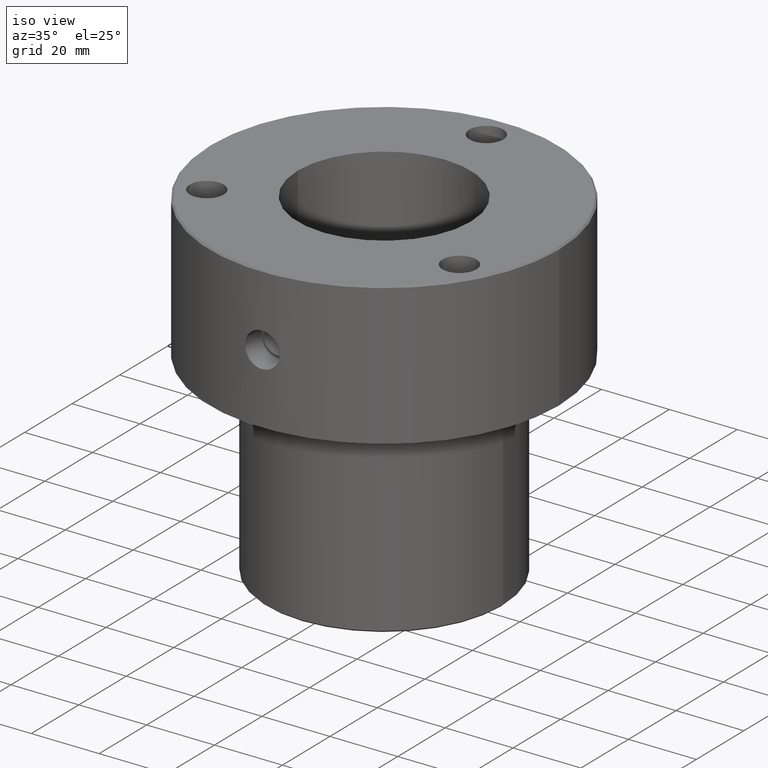
[diagram: clean part render]
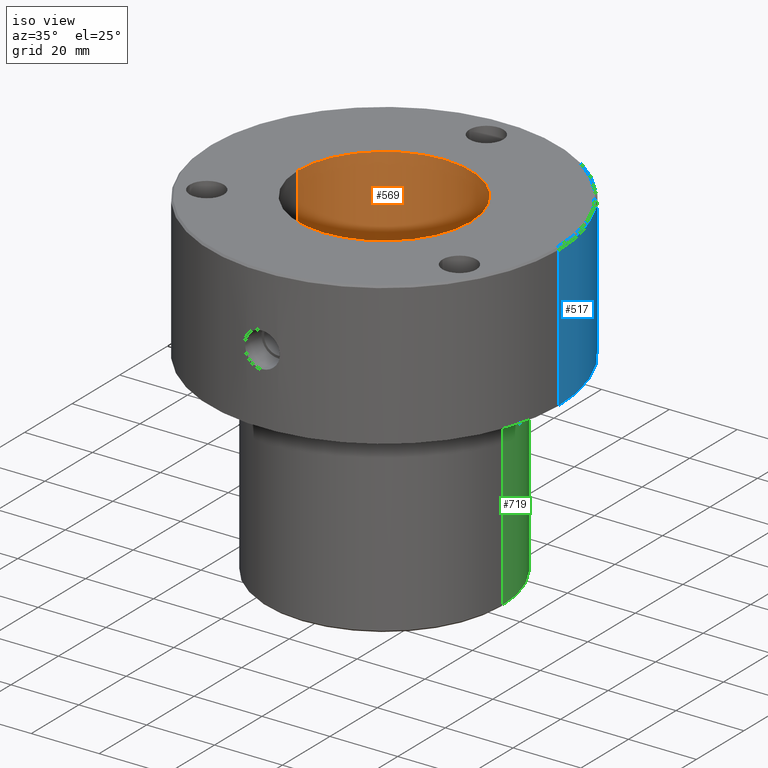
[diagram: same view with three faces highlighted in distinct colors, each labeled with its STEP entity id]
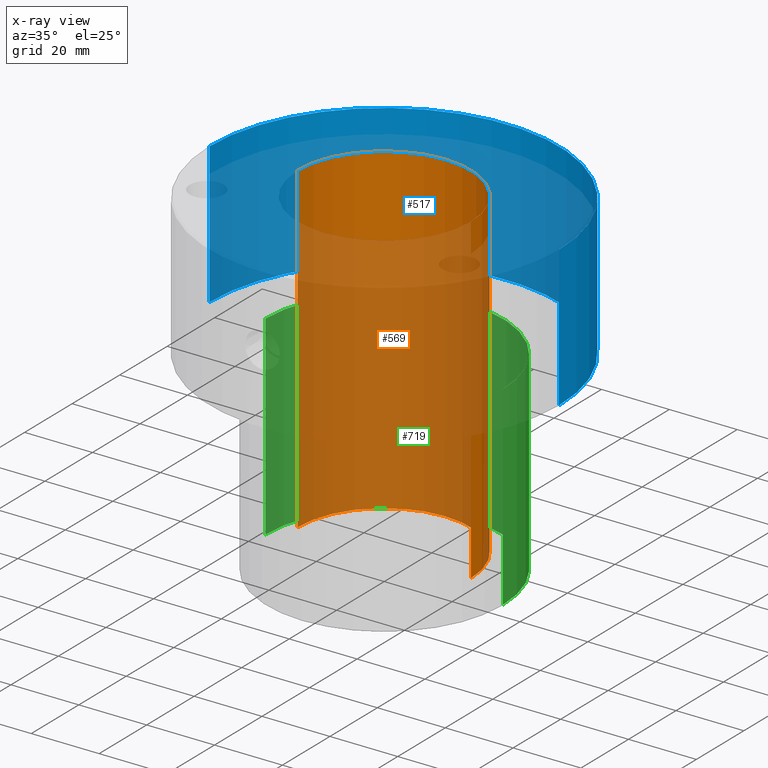
[diagram: x-ray of the same camera — body ghosted, the three highlighted faces saturated]
A machine part, iso view with three faces highlighted in distinct colors.
The next image is the same camera in x-ray (body ghosted, the three faces saturated) — at least one of them is partly hidden behind the body in this view.
Their STEP definitions:

[orange] entity #569 — the highlighted cylindrical surface (partial cylindrical patch) has radius 25.5 mm, axis along (-0, -0, -1).
#51 = CARTESIAN_POINT ( 'NONE',  ( 25.50000000000000000, 3.122849337825750222E-15, 0.000000000000000000 ) ) ;
#116 = EDGE_CURVE ( 'NONE', #515, #1130, #860, .T. ) ;
#168 = ORIENTED_EDGE ( 'NONE', *, *, #298, .F. ) ;
#181 = AXIS2_PLACEMENT_3D ( 'NONE', #573, #1249, #1064 ) ;
#253 = DIRECTION ( 'NONE',  ( -0.000000000000000000, -0.000000000000000000, -1.000000000000000000 ) ) ;
#265 = EDGE_CURVE ( 'NONE', #558, #1130, #1226, .T. ) ;
#298 = EDGE_CURVE ( 'NONE', #1218, #558, #664, .T. ) ;
#325 = FACE_OUTER_BOUND ( 'NONE', #1097, .T. ) ;
#375 = VECTOR ( 'NONE', #386, 1000.000000000000000 ) ;
#386 = DIRECTION ( 'NONE',  ( -0.000000000000000000, -0.000000000000000000, -1.000000000000000000 ) ) ;
#405 = DIRECTION ( 'NONE',  ( -1.000000000000000000, 0.000000000000000000, 0.000000000000000000 ) ) ;
#413 = CYLINDRICAL_SURFACE ( 'NONE', #704, 25.50000000000000000 ) ;
#513 = CARTESIAN_POINT ( 'NONE',  ( -25.50000000000000000, 0.000000000000000000, -95.00000000000000000 ) ) ;
#515 = VERTEX_POINT ( 'NONE', #513 ) ;
#558 = VERTEX_POINT ( 'NONE', #1092 ) ;
#569 = ADVANCED_FACE ( 'NONE', ( #325 ), #413, .F. ) ;
#573 = CARTESIAN_POINT ( 'NONE',  ( 0.000000000000000000, 0.000000000000000000, 0.000000000000000000 ) ) ;
#591 = CARTESIAN_POINT ( 'NONE',  ( 25.50000000000000000, 3.122849337825750222E-15, -95.00000000000000000 ) ) ;
#635 = ORIENTED_EDGE ( 'NONE', *, *, #116, .T. ) ;
#663 = CARTESIAN_POINT ( 'NONE',  ( -25.50000000000000000, 0.000000000000000000, 0.000000000000000000 ) ) ;
#664 = CIRCLE ( 'NONE', #181, 25.50000000000000000 ) ;
#691 = CARTESIAN_POINT ( 'NONE',  ( 0.000000000000000000, 0.000000000000000000, -95.00000000000000000 ) ) ;
#704 = AXIS2_PLACEMENT_3D ( 'NONE', #717, #799, #1193 ) ;
#717 = CARTESIAN_POINT ( 'NONE',  ( 0.000000000000000000, 0.000000000000000000, 0.000000000000000000 ) ) ;
#799 = DIRECTION ( 'NONE',  ( -0.000000000000000000, -0.000000000000000000, -1.000000000000000000 ) ) ;
#859 = CARTESIAN_POINT ( 'NONE',  ( -25.50000000000000000, 0.000000000000000000, 0.000000000000000000 ) ) ;
#860 = CIRCLE ( 'NONE', #1031, 25.50000000000000000 ) ;
#900 = VECTOR ( 'NONE', #253, 1000.000000000000000 ) ;
#1031 = AXIS2_PLACEMENT_3D ( 'NONE', #691, #1080, #405 ) ;
#1050 = EDGE_CURVE ( 'NONE', #1218, #515, #1144, .T. ) ;
#1064 = DIRECTION ( 'NONE',  ( -1.000000000000000000, 0.000000000000000000, 0.000000000000000000 ) ) ;
#1080 = DIRECTION ( 'NONE',  ( 0.000000000000000000, 0.000000000000000000, -1.000000000000000000 ) ) ;
#1092 = CARTESIAN_POINT ( 'NONE',  ( 25.50000000000000000, 3.122849337825750222E-15, 0.000000000000000000 ) ) ;
#1097 = EDGE_LOOP ( 'NONE', ( #1113, #168, #1137, #635 ) ) ;
#1113 = ORIENTED_EDGE ( 'NONE', *, *, #265, .F. ) ;
#1130 = VERTEX_POINT ( 'NONE', #591 ) ;
#1137 = ORIENTED_EDGE ( 'NONE', *, *, #1050, .T. ) ;
#1144 = LINE ( 'NONE', #663, #900 ) ;
#1193 = DIRECTION ( 'NONE',  ( -1.000000000000000000, 0.000000000000000000, 0.000000000000000000 ) ) ;
#1218 = VERTEX_POINT ( 'NONE', #859 ) ;
#1226 = LINE ( 'NONE', #51, #375 ) ;
#1249 = DIRECTION ( 'NONE',  ( 0.000000000000000000, 0.000000000000000000, -1.000000000000000000 ) ) ;

[blue] entity #517 — the highlighted cylindrical surface (partial cylindrical patch) has radius 51.5 mm, axis along (-0, -0, 1).
#3 = VERTEX_POINT ( 'NONE', #488 ) ;
#16 = EDGE_CURVE ( 'NONE', #21, #126, #446, .T. ) ;
#21 = VERTEX_POINT ( 'NONE', #86 ) ;
#52 = DIRECTION ( 'NONE',  ( 1.000000000000000000, 0.000000000000000000, 0.000000000000000000 ) ) ;
#86 = CARTESIAN_POINT ( 'NONE',  ( -51.50000000000000000, 6.306931015608868807E-15, -42.00000000000000000 ) ) ;
#126 = VERTEX_POINT ( 'NONE', #241 ) ;
#135 = EDGE_CURVE ( 'NONE', #3, #140, #798, .T. ) ;
#140 = VERTEX_POINT ( 'NONE', #1175 ) ;
#163 = AXIS2_PLACEMENT_3D ( 'NONE', #757, #805, #52 ) ;
#213 = DIRECTION ( 'NONE',  ( -0.000000000000000000, -0.000000000000000000, 1.000000000000000000 ) ) ;
#227 = DIRECTION ( 'NONE',  ( 1.000000000000000000, 0.000000000000000000, 0.000000000000000000 ) ) ;
#241 = CARTESIAN_POINT ( 'NONE',  ( -51.50000000000000000, 6.306931015608868807E-15, -0.5000000000000004441 ) ) ;
#312 = AXIS2_PLACEMENT_3D ( 'NONE', #725, #707, #227 ) ;
#395 = CIRCLE ( 'NONE', #460, 51.50000000000000000 ) ;
#430 = FACE_OUTER_BOUND ( 'NONE', #441, .T. ) ;
#441 = EDGE_LOOP ( 'NONE', ( #1180, #1124, #904, #528 ) ) ;
#445 = DIRECTION ( 'NONE',  ( -0.000000000000000000, -0.000000000000000000, 1.000000000000000000 ) ) ;
#446 = LINE ( 'NONE', #750, #761 ) ;
#457 = CIRCLE ( 'NONE', #312, 51.50000000000000000 ) ;
#460 = AXIS2_PLACEMENT_3D ( 'NONE', #1238, #445, #733 ) ;
#488 = CARTESIAN_POINT ( 'NONE',  ( 51.50000000000000000, 0.000000000000000000, -42.00000000000000000 ) ) ;
#517 = ADVANCED_FACE ( 'NONE', ( #430 ), #1205, .T. ) ;
#528 = ORIENTED_EDGE ( 'NONE', *, *, #135, .F. ) ;
#540 = EDGE_CURVE ( 'NONE', #126, #140, #457, .T. ) ;
#702 = VECTOR ( 'NONE', #213, 1000.000000000000000 ) ;
#707 = DIRECTION ( 'NONE',  ( 0.000000000000000000, 0.000000000000000000, -1.000000000000000000 ) ) ;
#725 = CARTESIAN_POINT ( 'NONE',  ( 0.000000000000000000, 0.000000000000000000, -0.5000000000000004441 ) ) ;
#733 = DIRECTION ( 'NONE',  ( 1.000000000000000000, 0.000000000000000000, 0.000000000000000000 ) ) ;
#750 = CARTESIAN_POINT ( 'NONE',  ( -51.50000000000000000, 6.306931015608868807E-15, 0.000000000000000000 ) ) ;
#757 = CARTESIAN_POINT ( 'NONE',  ( 0.000000000000000000, 0.000000000000000000, 0.000000000000000000 ) ) ;
#761 = VECTOR ( 'NONE', #953, 1000.000000000000000 ) ;
#798 = LINE ( 'NONE', #1192, #702 ) ;
#805 = DIRECTION ( 'NONE',  ( -0.000000000000000000, -0.000000000000000000, 1.000000000000000000 ) ) ;
#904 = ORIENTED_EDGE ( 'NONE', *, *, #540, .T. ) ;
#953 = DIRECTION ( 'NONE',  ( -0.000000000000000000, -0.000000000000000000, 1.000000000000000000 ) ) ;
#974 = EDGE_CURVE ( 'NONE', #3, #21, #395, .T. ) ;
#1124 = ORIENTED_EDGE ( 'NONE', *, *, #16, .T. ) ;
#1175 = CARTESIAN_POINT ( 'NONE',  ( 51.50000000000000000, 0.000000000000000000, -0.5000000000000004441 ) ) ;
#1180 = ORIENTED_EDGE ( 'NONE', *, *, #974, .T. ) ;
#1192 = CARTESIAN_POINT ( 'NONE',  ( 51.50000000000000000, 0.000000000000000000, 0.000000000000000000 ) ) ;
#1205 = CYLINDRICAL_SURFACE ( 'NONE', #163, 51.50000000000000000 ) ;
#1238 = CARTESIAN_POINT ( 'NONE',  ( 0.000000000000000000, 0.000000000000000000, -42.00000000000000000 ) ) ;

[green] entity #719 — the highlighted cylindrical surface (partial cylindrical patch) has radius 35 mm, axis along (-0, -0, 1).
#33 = LINE ( 'NONE', #503, #279 ) ;
#113 = VECTOR ( 'NONE', #1196, 1000.000000000000000 ) ;
#114 = DIRECTION ( 'NONE',  ( 1.000000000000000000, 0.000000000000000000, 0.000000000000000000 ) ) ;
#160 = CARTESIAN_POINT ( 'NONE',  ( 35.00000000000000000, 0.000000000000000000, -42.00000000000000000 ) ) ;
#178 = ORIENTED_EDGE ( 'NONE', *, *, #498, .F. ) ;
#267 = DIRECTION ( 'NONE',  ( 1.000000000000000000, 0.000000000000000000, 0.000000000000000000 ) ) ;
#279 = VECTOR ( 'NONE', #401, 1000.000000000000000 ) ;
#281 = CARTESIAN_POINT ( 'NONE',  ( -35.00000000000000000, 4.286263797015736496E-15, -99.50000000000004263 ) ) ;
#285 = DIRECTION ( 'NONE',  ( -1.000000000000000000, 0.000000000000000000, 0.000000000000000000 ) ) ;
#354 = CIRCLE ( 'NONE', #1070, 35.00000000000000000 ) ;
#355 = DIRECTION ( 'NONE',  ( -0.000000000000000000, -0.000000000000000000, 1.000000000000000000 ) ) ;
#358 = CARTESIAN_POINT ( 'NONE',  ( 0.000000000000000000, 0.000000000000000000, 0.000000000000000000 ) ) ;
#401 = DIRECTION ( 'NONE',  ( -0.000000000000000000, -0.000000000000000000, 1.000000000000000000 ) ) ;
#498 = EDGE_CURVE ( 'NONE', #1121, #1037, #504, .T. ) ;
#503 = CARTESIAN_POINT ( 'NONE',  ( -35.00000000000000000, 4.286263797015736496E-15, 0.000000000000000000 ) ) ;
#504 = LINE ( 'NONE', #802, #113 ) ;
#537 = AXIS2_PLACEMENT_3D ( 'NONE', #358, #1136, #267 ) ;
#709 = ORIENTED_EDGE ( 'NONE', *, *, #1074, .T. ) ;
#719 = ADVANCED_FACE ( 'NONE', ( #1232 ), #834, .T. ) ;
#735 = VERTEX_POINT ( 'NONE', #1046 ) ;
#764 = AXIS2_PLACEMENT_3D ( 'NONE', #1251, #1065, #285 ) ;
#802 = CARTESIAN_POINT ( 'NONE',  ( 35.00000000000000000, 0.000000000000000000, 0.000000000000000000 ) ) ;
#807 = EDGE_CURVE ( 'NONE', #1037, #735, #354, .T. ) ;
#834 = CYLINDRICAL_SURFACE ( 'NONE', #537, 35.00000000000000000 ) ;
#889 = EDGE_CURVE ( 'NONE', #1120, #735, #33, .T. ) ;
#978 = CARTESIAN_POINT ( 'NONE',  ( 0.000000000000000000, 0.000000000000000000, -42.00000000000000000 ) ) ;
#1017 = ORIENTED_EDGE ( 'NONE', *, *, #807, .F. ) ;
#1037 = VERTEX_POINT ( 'NONE', #160 ) ;
#1046 = CARTESIAN_POINT ( 'NONE',  ( -35.00000000000000000, 4.286263797015736496E-15, -42.00000000000000000 ) ) ;
#1059 = EDGE_LOOP ( 'NONE', ( #709, #1214, #1017, #178 ) ) ;
#1065 = DIRECTION ( 'NONE',  ( -0.000000000000000000, -0.000000000000000000, 1.000000000000000000 ) ) ;
#1067 = CARTESIAN_POINT ( 'NONE',  ( 35.00000000000000000, 0.000000000000000000, -99.50000000000004263 ) ) ;
#1070 = AXIS2_PLACEMENT_3D ( 'NONE', #978, #355, #114 ) ;
#1074 = EDGE_CURVE ( 'NONE', #1121, #1120, #1188, .T. ) ;
#1120 = VERTEX_POINT ( 'NONE', #281 ) ;
#1121 = VERTEX_POINT ( 'NONE', #1067 ) ;
#1136 = DIRECTION ( 'NONE',  ( -0.000000000000000000, -0.000000000000000000, 1.000000000000000000 ) ) ;
#1188 = CIRCLE ( 'NONE', #764, 35.00000000000000000 ) ;
#1196 = DIRECTION ( 'NONE',  ( -0.000000000000000000, -0.000000000000000000, 1.000000000000000000 ) ) ;
#1214 = ORIENTED_EDGE ( 'NONE', *, *, #889, .T. ) ;
#1232 = FACE_OUTER_BOUND ( 'NONE', #1059, .T. ) ;
#1251 = CARTESIAN_POINT ( 'NONE',  ( 0.000000000000000000, 0.000000000000000000, -99.50000000000004263 ) ) ;